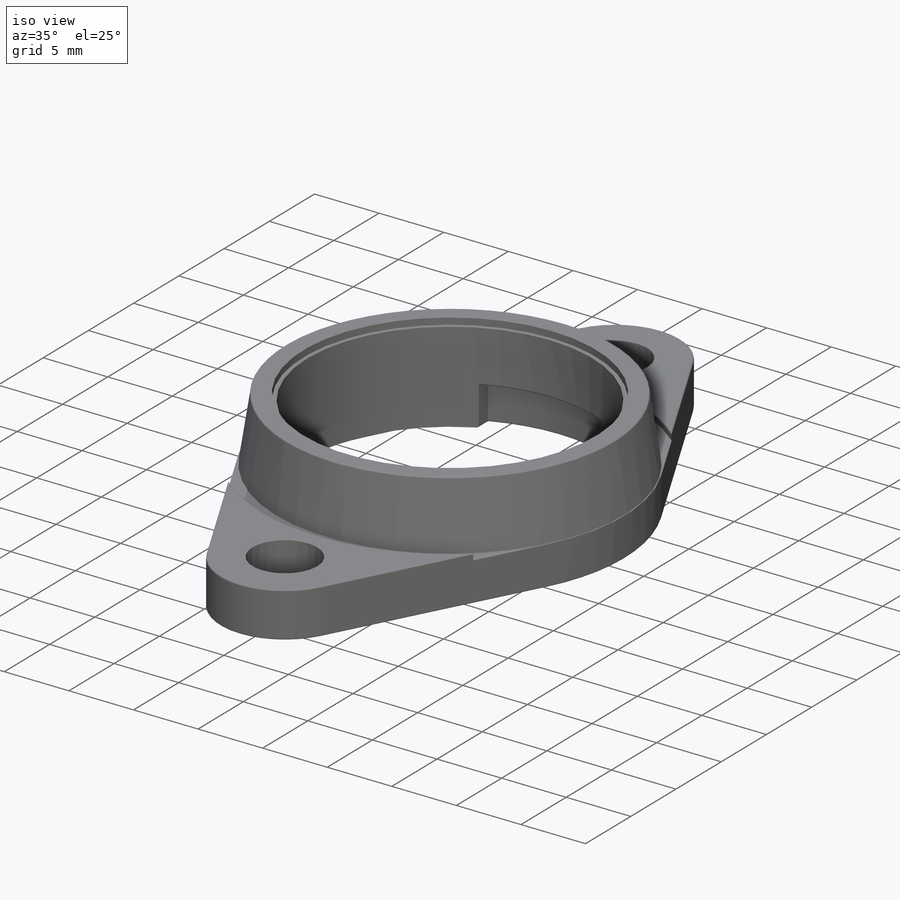
[diagram: iso view]
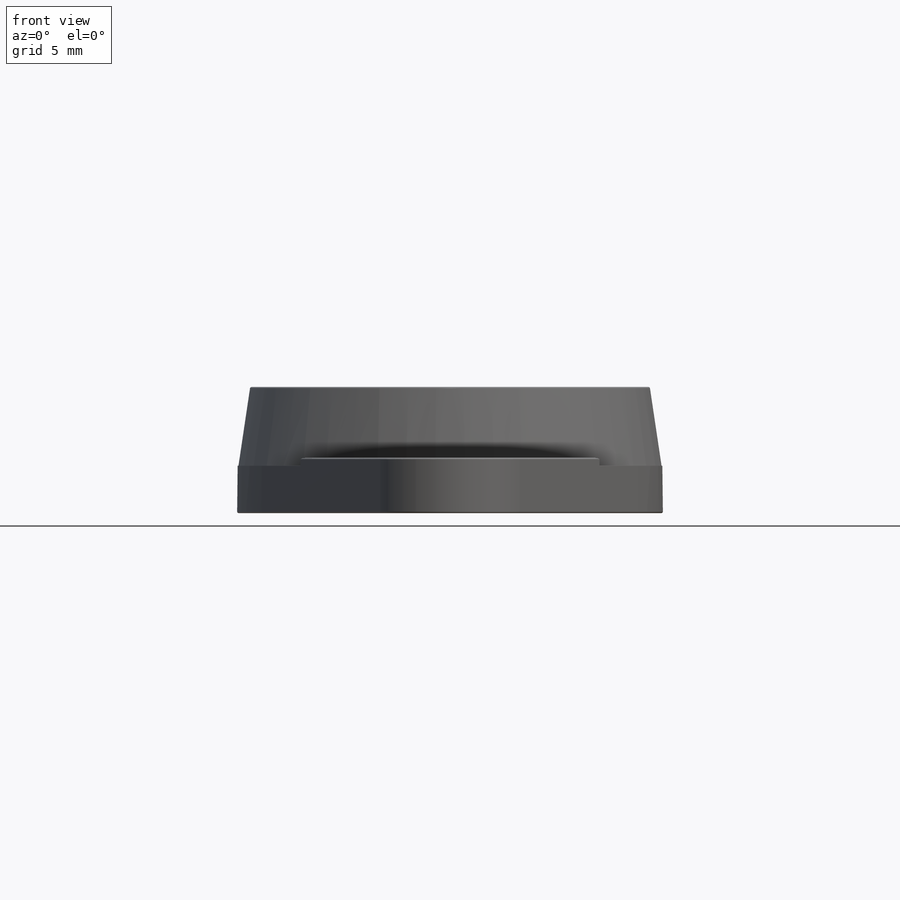
[diagram: front view]
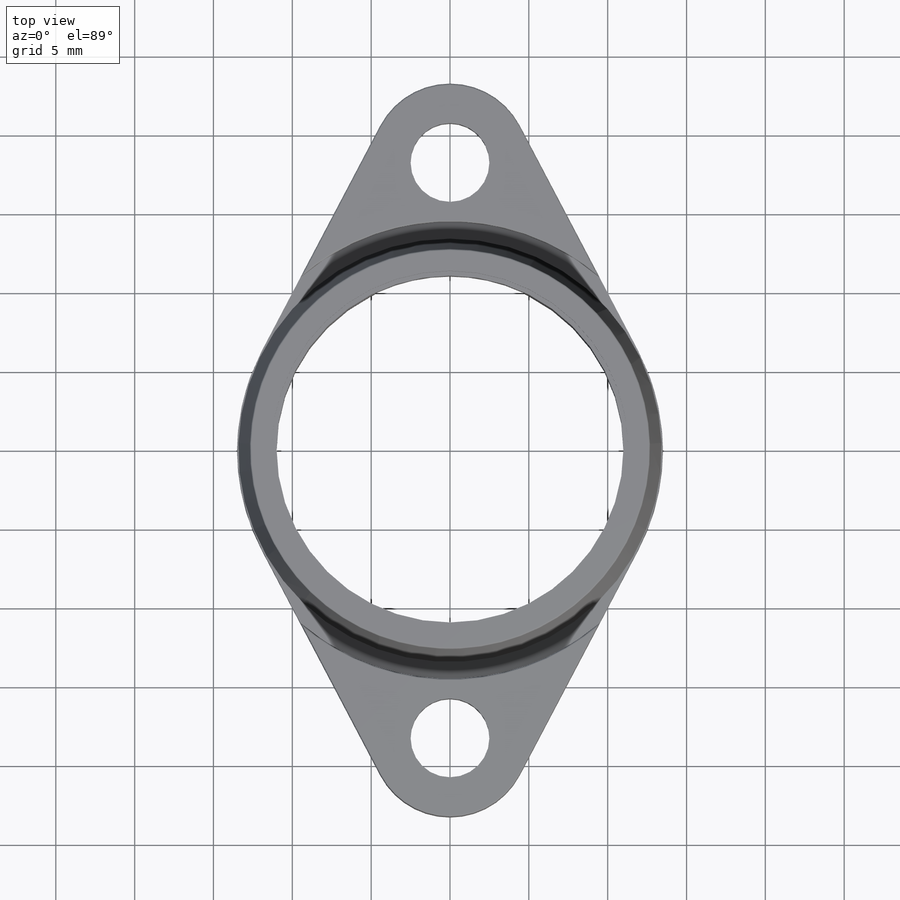
[diagram: top view]
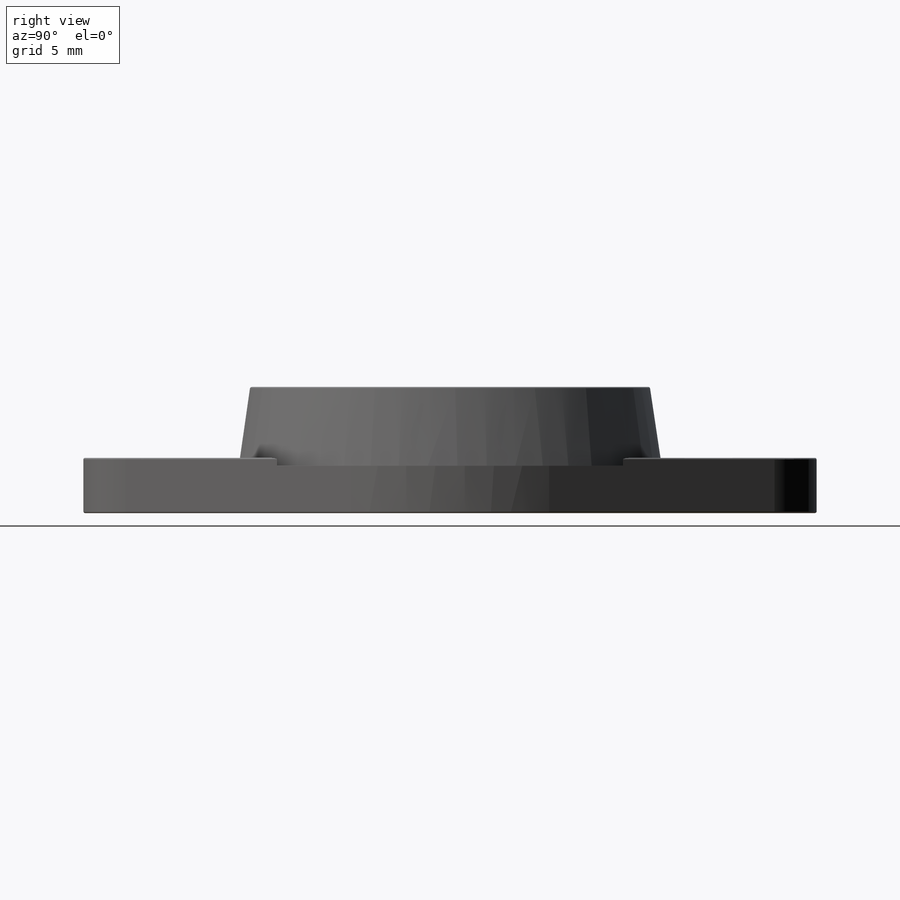
[diagram: right view]
SOLIDWORKS PART (.sldprt)
format: sldprt  version: not decoded by parser v0  size: 501,248 bytes
history: native  units: mm
features: sketch x7, plane x3, extrude x2, cut_extrude x2, material x1, revolve x1, fillet x1, hole x1 (+10 scaffold rows collapsed)
feature tree (28):
  scaffold x10  (default folders/planes/origin — collapsed)
  material  "Zinco AC41A Liga, como fundido"
  plane  "Plano frontal"
  plane  "Plano superior"
  plane  "Plano direito"
  sketch  "Esboço3"  dims[c1.D1=22.0mm c1.D2=27.0mm c1.D4=~9.17068mm c1.D3=5.0mm c1.D5=5.0mm c1.D6=5.0mm c1.D7=5.0mm c2.D3=18.0mm c2.D4=46.5mm c2.D7=37.5mm]
  extrude  "Ressalto-extrusão1"  Depth=3mm
  sketch  "Esboço4"  dims[D1=4.5mm D2=12.675mm D3=13.425mm D4=0.5mm D5=0.3mm]
  revolve  "Revolução1"  Angle=360deg
  sketch  "Esboço6"  dims[D1=29.0mm D2=29.0mm]
  extrude  "Ressalto-extrusão2"  Depth=0.5mm
  sketch  "Esboço7"  dims[D3=9.0mm D1=1.75mm D2=1.75mm]
  cut_extrude  "Corte-extrusão1"  Depth=0.5mm
  sketch  "Esboço8"  dims[D1=1.0mm D2=9.5mm]
  cut_extrude  "Corte-extrusão2"  Depth=3mm
  fillet  "Filete1"  Radius=0.1mm
  hole  "Furo de diâmetro Ø5.0 (5)1"  Diameter=5mm Depth=11.35mm
  sketch  "3DSketch1"
  sketch  "Esboço9"  dims[hole-wizard template sketch: 47 standard entries collapsed; hole parameters kept: c15.Hole Depth=11.35mm c15.D3=~14.816244mm c15.Drill Angle=118.0deg]
decode coverage: 13 of 14 modeling features carry decoded parameters
note: ~ marks probable driven/reference dimensions
note: suppression state not decoded; provenance and decode notes live in map.json
